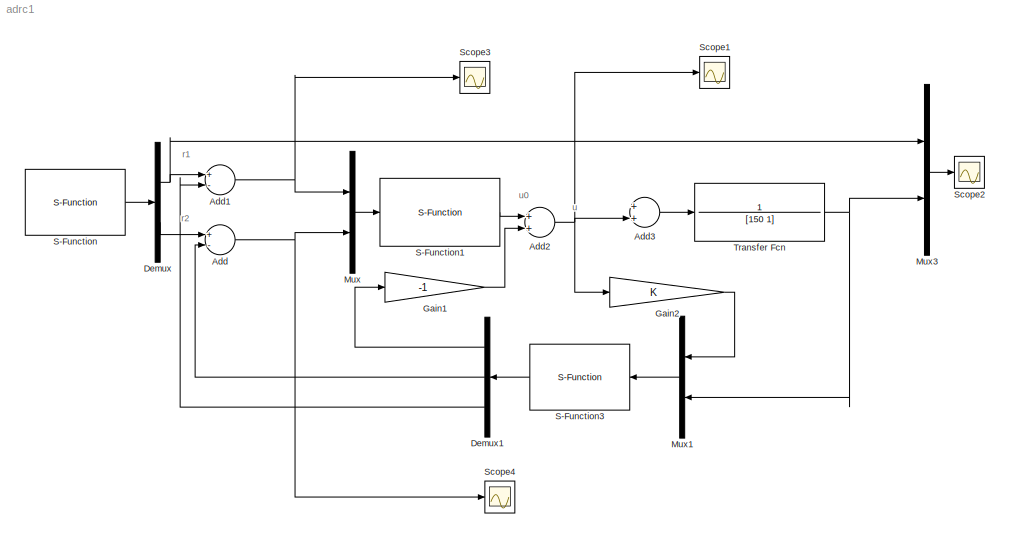
MODEL adrc1
KIND model
BLOCK [Sum] Add
  InputSameDT = off
  Inputs = +-
  OutDataTypeStr = Inherit: Inherit via internal rule
  Ports = [2, 1]
  SID = 1
  SaturateOnIntegerOverflow = off
BLOCK [Sum] Add1
  InputSameDT = off
  Inputs = +-
  OutDataTypeStr = Inherit: Inherit via internal rule
  Ports = [2, 1]
  SID = 2
  SaturateOnIntegerOverflow = off
BLOCK [Sum] Add2
  InputSameDT = off
  OutDataTypeStr = Inherit: Inherit via internal rule
  Ports = [2, 1]
  SID = 3
  SaturateOnIntegerOverflow = off
BLOCK [Sum] Add3
  InputSameDT = off
  OutDataTypeStr = Inherit: Inherit via internal rule
  Ports = [2, 1]
  SID = 4
  SaturateOnIntegerOverflow = off
BLOCK [Demux] Demux
  DisplayOption = bar
  Outputs = 2
  Ports = [1, 2]
  SID = 5
BLOCK [Demux] Demux1
  DisplayOption = bar
  Outputs = 3
  Ports = [1, 3]
  SID = 6
BLOCK [Gain] Gain1
  Gain = -1
  OutDataTypeStr = Inherit: Inherit via internal rule
  ParamDataTypeStr = Inherit: Inherit via internal rule
  SID = 7
  SaturateOnIntegerOverflow = off
BLOCK [Gain] Gain2
  OutDataTypeStr = Inherit: Inherit via internal rule
  ParamDataTypeStr = Inherit: Inherit via internal rule
  SID = 8
  SaturateOnIntegerOverflow = off
BLOCK [Mux] Mux
  DisplayOption = bar
  Inputs = 2
  Ports = [2, 1]
  SID = 9
BLOCK [Mux] Mux1
  DisplayOption = bar
  Inputs = 2
  Ports = [2, 1]
  SID = 10
BLOCK [Mux] Mux3
  DisplayOption = bar
  Inputs = 2
  Ports = [2, 1]
  SID = 11
BLOCK [S-Function] S-Function
  EnableBusSupport = off
  FunctionName = ReferenceProcess
  MaskCallbackString = ||
  MaskEnableString = on,on,on
  MaskIconFrame = on
  MaskIconOpaque = on
  MaskIconRotate = none
  MaskIconUnits = autoscale
  MaskPortRotate = default
  MaskPromptString = SetPoint|RisingTime|SampleTime
  MaskStyleString = edit,edit,edit
  MaskToolTipString = on,on,on
  MaskTunableValueString = on,on,on
  MaskValueString = 5|50|0.1
  MaskVariables = SetPoint=@1;RisingTime=@2;SampleTime=@3;
  MaskVisibilityString = on,on,on
  Parameters = SetPoint, RisingTime,SampleTime
  Ports = [0, 1]
  SID = 12
BLOCK [S-Function] S-Function1
  EnableBusSupport = off
  FunctionName = NonlinearPD
  MaskCallbackString = |||||
  MaskEnableString = on,on,on,on,on,on
  MaskIconFrame = on
  MaskIconOpaque = on
  MaskIconRotate = none
  MaskIconUnits = autoscale
  MaskPortRotate = default
  MaskPromptString = Proportion Coefficient|Derivation Coefficient|Delta|Proportion Power|Derivation Power|Sample Time
  MaskStyleString = edit,edit,edit,edit,edit,edit
  MaskToolTipString = on,on,on,on,on,on
  MaskTunableValueString = on,on,on,on,on,on
  MaskValueString = 3000|2000|0.1|0.25|0.75|0.1
  MaskVariables = Beta1=@1;Beta2=@2;Delta=@3;A1=@4;A2=@5;SampleTime=@6;
  MaskVisibilityString = on,on,on,on,on,on
  Parameters = Beta1,Beta2,Delta,A1,A2,SampleTime
  Ports = [1, 1]
  SID = 13
BLOCK [S-Function] S-Function3
  EnableBusSupport = off
  FunctionName = ESO
  MaskCallbackString = ||||
  MaskEnableString = on,on,on,on,on
  MaskIconFrame = on
  MaskIconOpaque = on
  MaskIconRotate = none
  MaskIconUnits = autoscale
  MaskPortRotate = default
  MaskPromptString = Linear Region|Observer Coefficient 1|Observer Coefficient 2|Observer Coefficient 3|Sample Time
  MaskStyleString = edit,edit,edit,edit,edit
  MaskToolTipString = on,on,on,on,on
  MaskTunableValueString = on,on,on,on,on
  MaskValueString = 0.1|100|65|85|0.1
  MaskVariables = Delta=@1;Beta1=@2;Beta2=@3;Beta3=@4;SampleTime=@5;
  MaskVisibilityString = on,on,on,on,on
  Parameters = SampleTime,Delta,Beta1,Beta2,Beta3
  Ports = [1, 1]
  SID = 14
BLOCK [Scope] Scope1
  DataFormat = StructureWithTime
  Floating = off
  LimitDataPoints = off
  NumInputPorts = 1
  Ports = [1]
  SID = 15
  SampleTime = 0
  TimeRange = 3.16679535927733e-007
  YMax = 0.99644
  YMin = 0.996252
BLOCK [Scope] Scope2
  DataFormat = StructureWithTime
  Floating = off
  LimitDataPoints = off
  NumInputPorts = 1
  Ports = [1]
  SID = 16
  SampleTime = 0
  SaveName = ScopeData10
  TimeRange = 24
  YMax = 0.859090909090909
  YMin = 0.852020202020202
BLOCK [Scope] Scope3
  DataFormat = StructureWithTime
  Floating = off
  LimitDataPoints = off
  NumInputPorts = 1
  Ports = [1]
  SID = 17
  SampleTime = 0
  SaveName = ScopeData1
  TimeRange = 3.16679535927733e-007
  YMax = 0.9964397232263716
  YMin = 0.9962515155865817
BLOCK [Scope] Scope4
  DataFormat = StructureWithTime
  Floating = off
  LimitDataPoints = off
  NumInputPorts = 1
  Ports = [1]
  SID = 18
  SampleTime = 0
  SaveName = ScopeData2
  TimeRange = 3.16679535927733e-007
  YMax = 0.99644
  YMin = 0.996252
BLOCK [TransferFcn] Transfer Fcn
  Denominator = [150 1]
  Numerator = 1
  SID = 19
ANNOTATION (root): r1
ANNOTATION (root): r2
ANNOTATION (root): u
ANNOTATION (root): u0
NET Add1:1 -> Mux:1, Scope3:1
NET Add2:1 -> Add3:2, Gain2:1, Scope1:1
LINE Add3:1 -> Transfer Fcn:1
NET Add:1 -> Mux:2, Scope4:1
LINE Demux1:1 -> Gain1:1
LINE Demux1:2 -> Add:2
LINE Demux1:3 -> Add1:2
NET Demux:1 -> Add1:1, Mux3:1
LINE Demux:2 -> Add:1
LINE Gain1:1 -> Add2:2
LINE Gain2:1 -> Mux1:1
LINE Mux1:1 -> S-Function3:1
LINE Mux3:1 -> Scope2:1
LINE Mux:1 -> S-Function1:1
LINE S-Function1:1 -> Add2:1
LINE S-Function3:1 -> Demux1:1
LINE S-Function:1 -> Demux:1
NET Transfer Fcn:1 -> Mux1:2, Mux3:2
note: NET lines group one-source signal fan-out (src -> all destinations, sorted); 1:1 wires keep LINE
